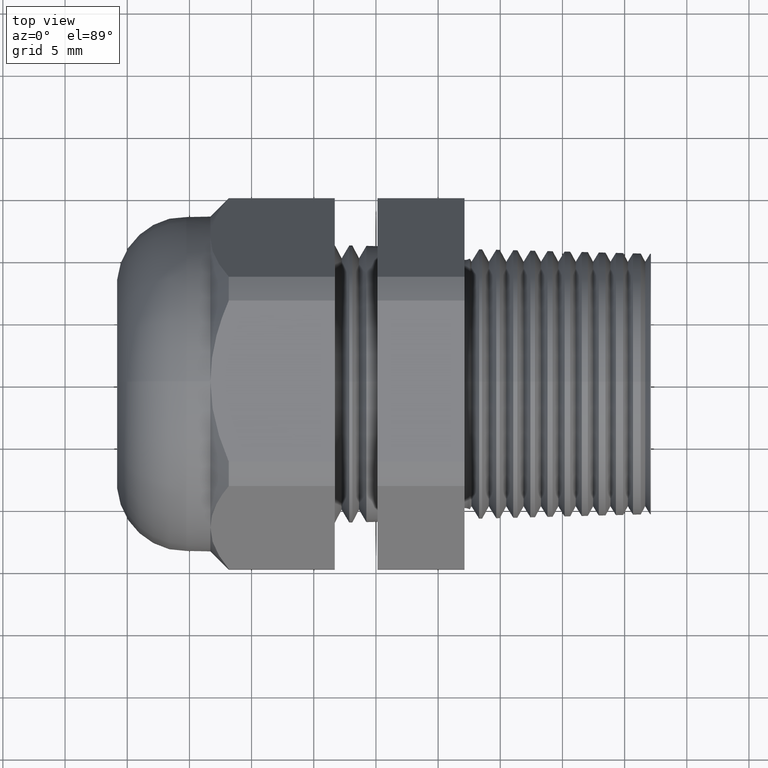
[diagram: clean part render]
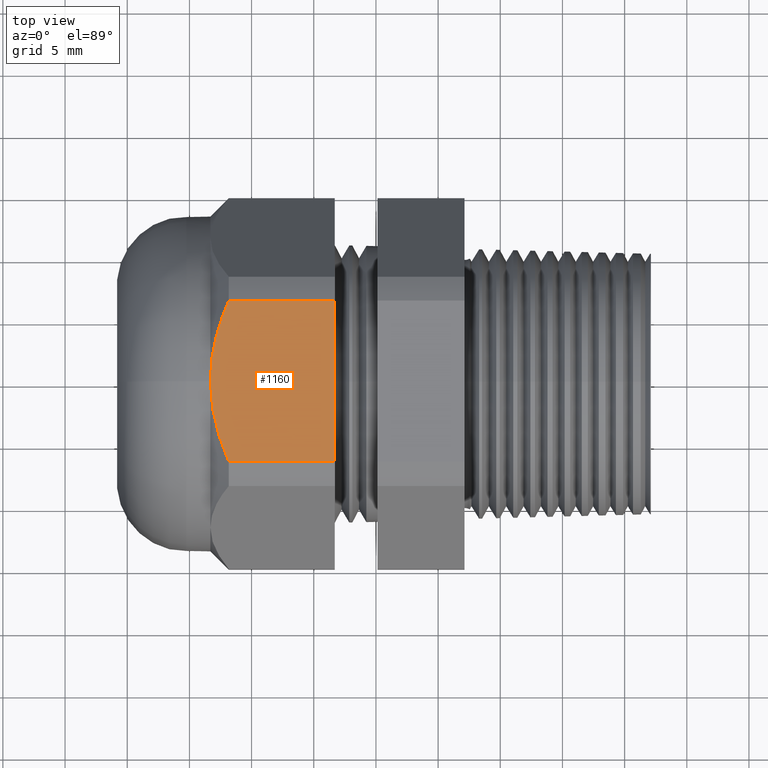
[diagram: same view with one face highlighted and labeled with its STEP entity id]
A machine part, top view. The second image highlights one B-rep face of the part: STEP entity #1160.
In plain terms, the highlighted planar face has unit normal (0, 0, 1).
Its self-contained STEP definition (entity closure, byte-faithful):
#621 = CARTESIAN_POINT ( 'NONE',  ( -1.087608700860912800, -0.1728098393691077400, 0.5300000000000001400 ) ) ;
#882 = CARTESIAN_POINT ( 'NONE',  ( -1.073259737990255100, -0.2146094092825773000, 0.5300000000000002500 ) ) ;
#1018 = VERTEX_POINT ( 'NONE', #2250 ) ;
#1080 = CARTESIAN_POINT ( 'NONE',  ( -1.093820381180306900, -0.1517316267221620300, 0.5300000000000002500 ) ) ;
#1081 = CARTESIAN_POINT ( 'NONE',  ( -1.109082259597364800, -0.08787186943844435500, 0.5299999999999999200 ) ) ;
#1083 = CARTESIAN_POINT ( 'NONE',  ( -1.114724409448818700, -0.04445874038965418100, 0.5300000000000000300 ) ) ;
#1130 = EDGE_LOOP ( 'NONE', ( #1155, #1138, #1143, #1161, #1162 ) ) ;
#1131 = VERTEX_POINT ( 'NONE', #2470 ) ;
#1134 = VERTEX_POINT ( 'NONE', #2467 ) ;
#1137 = VERTEX_POINT ( 'NONE', #2458 ) ;
#1138 = ORIENTED_EDGE ( 'NONE', *, *, #1147, .T. ) ;
#1140 = EDGE_CURVE ( 'NONE', #1131, #1137, #2457, .T. ) ;
#1143 = ORIENTED_EDGE ( 'NONE', *, *, #1145, .T. ) ;
#1145 = EDGE_CURVE ( 'NONE', #1018, #1134, #2198, .T. ) ;
#1147 = EDGE_CURVE ( 'NONE', #1137, #1018, #2502, .T. ) ;
#1153 = EDGE_CURVE ( 'NONE', #1131, #1159, #2479, .T. ) ;
#1155 = ORIENTED_EDGE ( 'NONE', *, *, #1140, .T. ) ;
#1156 = EDGE_CURVE ( 'NONE', #1159, #1134, #2533, .T. ) ;
#1159 = VERTEX_POINT ( 'NONE', #2529 ) ;
#1160 = ADVANCED_FACE ( 'NONE', ( #2528 ), #2527, .T. ) ;
#1161 = ORIENTED_EDGE ( 'NONE', *, *, #1156, .F. ) ;
#1162 = ORIENTED_EDGE ( 'NONE', *, *, #1153, .F. ) ;
#2198 = B_SPLINE_CURVE_WITH_KNOTS ( 'NONE', 3,
 ( #2447, #1083, #1081, #1080, #621, #882, #2504, #2503 ),
 .UNSPECIFIED., .F., .F.,
 ( 4, 2, 2, 4 ),
 ( 0.01668051989055325400, 0.01999949653634986900, 0.02165898485924817900, 0.02331847318214648500 ),
 .UNSPECIFIED. ) ;
#2250 = CARTESIAN_POINT ( 'NONE',  ( -1.114724409448818900, 0.0000000000000000000, 0.5300000000000001400 ) ) ;
#2447 = CARTESIAN_POINT ( 'NONE',  ( -1.114724409448818900, 0.0000000000000000000, 0.5300000000000001400 ) ) ;
#2454 = DIRECTION ( 'NONE',  ( -1.000000000000000000, 0.0000000000000000000, 0.0000000000000000000 ) ) ;
#2455 = VECTOR ( 'NONE', #2454, 39.37007874015748100 ) ;
#2456 = CARTESIAN_POINT ( 'NONE',  ( 0.2800000000000000300, 0.2553368167734530500, 0.5300000000000001400 ) ) ;
#2457 = LINE ( 'NONE', #2456, #2455 ) ;
#2458 = CARTESIAN_POINT ( 'NONE',  ( -1.056424409448819300, 0.2553368167734530500, 0.5300000000000001400 ) ) ;
#2467 = CARTESIAN_POINT ( 'NONE',  ( -1.056424409448819100, -0.2553368167734532700, 0.5300000000000001400 ) ) ;
#2470 = CARTESIAN_POINT ( 'NONE',  ( -0.7210236220472440200, 0.2553368167734530500, 0.5300000000000001400 ) ) ;
#2476 = DIRECTION ( 'NONE',  ( 0.0000000000000000000, -1.000000000000000000, 0.0000000000000000000 ) ) ;
#2477 = VECTOR ( 'NONE', #2476, 39.37007874015748100 ) ;
#2478 = CARTESIAN_POINT ( 'NONE',  ( -0.7210236220472440200, 0.4400000000000000000, 0.5300000000000001400 ) ) ;
#2479 = LINE ( 'NONE', #2478, #2477 ) ;
#2491 = CARTESIAN_POINT ( 'NONE',  ( -1.114724409448818900, 0.0000000000000000000, 0.5300000000000001400 ) ) ;
#2492 = CARTESIAN_POINT ( 'NONE',  ( -1.114724409448819300, 0.04442461113430303000, 0.5300000000000002500 ) ) ;
#2493 = CARTESIAN_POINT ( 'NONE',  ( -1.109077948923239000, 0.08790338043595157000, 0.5300000000000001400 ) ) ;
#2494 = CARTESIAN_POINT ( 'NONE',  ( -1.093806833574185100, 0.1517815661146135500, 0.5300000000000000300 ) ) ;
#2495 = CARTESIAN_POINT ( 'NONE',  ( -1.087591624396693900, 0.1728653463301441100, 0.5299999999999999200 ) ) ;
#2496 = CARTESIAN_POINT ( 'NONE',  ( -1.073235192627068900, 0.2146751329927175900, 0.5300000000000001400 ) ) ;
#2497 = CARTESIAN_POINT ( 'NONE',  ( -1.065149854951445800, 0.2352332545294325600, 0.5300000000000001400 ) ) ;
#2498 = CARTESIAN_POINT ( 'NONE',  ( -1.056424409448819300, 0.2553368167734530500, 0.5300000000000001400 ) ) ;
#2502 = B_SPLINE_CURVE_WITH_KNOTS ( 'NONE', 3,
 ( #2498, #2497, #2496, #2495, #2494, #2493, #2492, #2491 ),
 .UNSPECIFIED., .F., .F.,
 ( 4, 2, 2, 4 ),
 ( 0.01004766229894863700, 0.01170587669684979000, 0.01336409109475094500, 0.01668051989055325400 ),
 .UNSPECIFIED. ) ;
#2503 = CARTESIAN_POINT ( 'NONE',  ( -1.056424409448819100, -0.2553368167734532700, 0.5300000000000001400 ) ) ;
#2504 = CARTESIAN_POINT ( 'NONE',  ( -1.065160323084658000, -0.2352091357875817900, 0.5300000000000001400 ) ) ;
#2523 = DIRECTION ( 'NONE',  ( 1.000000000000000000, 0.0000000000000000000, 0.0000000000000000000 ) ) ;
#2524 = DIRECTION ( 'NONE',  ( 0.0000000000000000000, 0.0000000000000000000, 1.000000000000000000 ) ) ;
#2525 = CARTESIAN_POINT ( 'NONE',  ( 0.2800000000000000300, -0.2553368167734530500, 0.5300000000000001400 ) ) ;
#2526 = AXIS2_PLACEMENT_3D ( 'NONE', #2525, #2524, #2523 ) ;
#2527 = PLANE ( 'NONE',  #2526 ) ;
#2528 = FACE_OUTER_BOUND ( 'NONE', #1130, .T. ) ;
#2529 = CARTESIAN_POINT ( 'NONE',  ( -0.7210236220472440200, -0.2553368167734533200, 0.5299999999999999200 ) ) ;
#2530 = DIRECTION ( 'NONE',  ( -1.000000000000000000, 0.0000000000000000000, 0.0000000000000000000 ) ) ;
#2531 = VECTOR ( 'NONE', #2530, 39.37007874015748100 ) ;
#2532 = CARTESIAN_POINT ( 'NONE',  ( 0.2800000000000000300, -0.2553368167734533200, 0.5299999999999999200 ) ) ;
#2533 = LINE ( 'NONE', #2532, #2531 ) ;